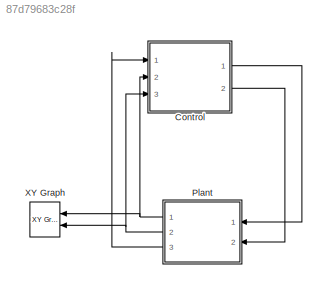
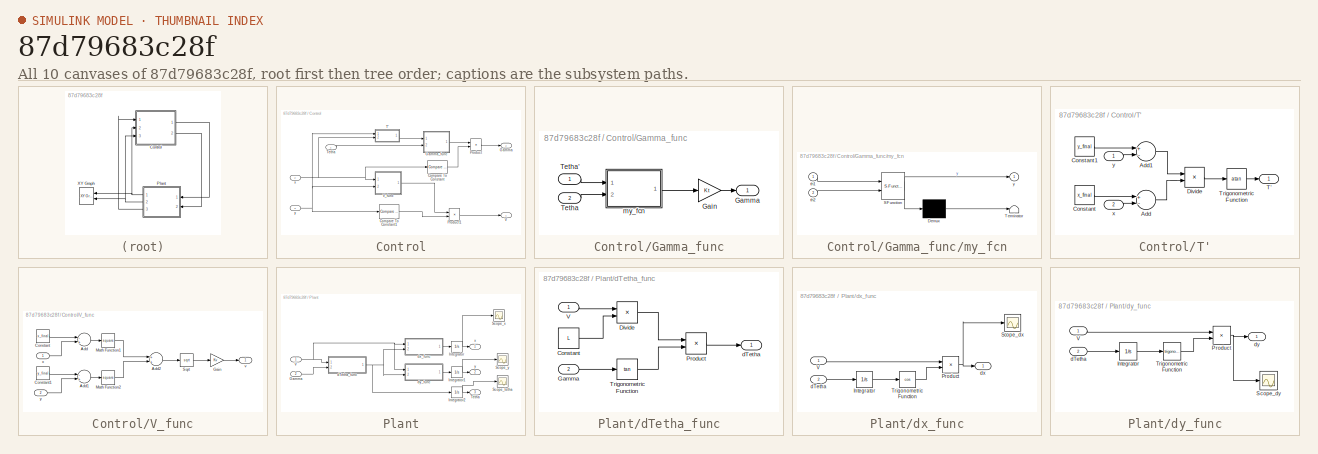
[diagram: thumbnail index - all 10 canvases of the model, root first then tree order]
MODEL slx_87d79683c28f
KIND model
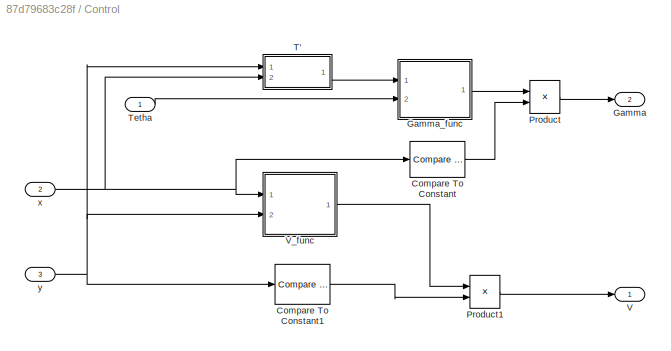
BLOCK [SubSystem] Control
  FunctionWithSeparateData = off
  MaskHideContents = off
  MinAlgLoopOccurrences = off
  Opaque = off
  Ports = [3, 2]
  PropExecContextOutsideSubsystem = off
  RTWSystemCode = Auto
  RequestExecContextInheritance = off
BLOCK [Reference] Control/Compare To Constant  REF=simulink/Logic and Bit
Operations/Compare
To Constant
  OutDataTypeStr = boolean
  Ports = [1, 1]
  SourceBlock = simulink/Logic and Bit\nOperations/Compare\nTo Constant
  SourceType = Compare To Constant
  ZeroCross = on
  const = x_final
  relop = <=
BLOCK [Reference] Control/Compare To Constant1  REF=simulink/Logic and Bit
Operations/Compare
To Constant
  OutDataTypeStr = boolean
  Ports = [1, 1]
  SourceBlock = simulink/Logic and Bit\nOperations/Compare\nTo Constant
  SourceType = Compare To Constant
  ZeroCross = on
  const = y_final
  relop = <=
BLOCK [Outport] Control/Gamma
  IconDisplay = Port number
  Port = 2
BLOCK [SubSystem] Control/Gamma_func
  FunctionWithSeparateData = off
  MaskHideContents = off
  MinAlgLoopOccurrences = off
  Opaque = off
  Ports = [2, 1]
  PropExecContextOutsideSubsystem = off
  RTWSystemCode = Auto
  RequestExecContextInheritance = off
BLOCK [Gain] Control/Gamma_func/Gain
  Gain = Kt
  OutDataTypeStr = Inherit: Inherit via internal rule
  ParamDataTypeStr = Inherit: Inherit via internal rule
  SaturateOnIntegerOverflow = off
BLOCK [Outport] Control/Gamma_func/Gamma
  IconDisplay = Port number
BLOCK [Inport] Control/Gamma_func/Tetha
  IconDisplay = Port number
  Port = 2
BLOCK [Inport] Control/Gamma_func/Tetha'
  IconDisplay = Port number
BLOCK [SubSystem] Control/Gamma_func/my_fcn
  ErrorFcn = Stateflow.Translate.translate
  FunctionWithSeparateData = off
  MaskHideContents = off
  MinAlgLoopOccurrences = off
  Opaque = off
  PermitHierarchicalResolution = ExplicitOnly
  Ports = [2, 1]
  PropExecContextOutsideSubsystem = off
  RTWSystemCode = Auto
  RequestExecContextInheritance = off
  SFBlockType = MATLAB Function
  TreatAsAtomicUnit = on
BLOCK [Demux] Control/Gamma_func/my_fcn/ Demux 
  Outputs = 1
  Ports = [1, 1]
BLOCK [S-Function] Control/Gamma_func/my_fcn/ SFunction 
  EnableBusSupport = on
  FunctionName = sf_sfun
  PortCounts = [2 2]
  Ports = [2, 2]
  Tag = Stateflow S-Function Model 2
BLOCK [Terminator] Control/Gamma_func/my_fcn/ Terminator 
BLOCK [Inport] Control/Gamma_func/my_fcn/th1
  IconDisplay = Port number
BLOCK [Inport] Control/Gamma_func/my_fcn/th2
  IconDisplay = Port number
  Port = 2
BLOCK [Outport] Control/Gamma_func/my_fcn/y
  IconDisplay = Port number
BLOCK [Product] Control/Product
  InputSameDT = off
  OutDataTypeStr = Inherit: Inherit via internal rule
  Ports = [2, 1]
  SaturateOnIntegerOverflow = off
BLOCK [Product] Control/Product1
  InputSameDT = off
  OutDataTypeStr = Inherit: Inherit via internal rule
  Ports = [2, 1]
  SaturateOnIntegerOverflow = off
BLOCK [SubSystem] Control/T'
  FunctionWithSeparateData = off
  MaskHideContents = off
  MinAlgLoopOccurrences = off
  Opaque = off
  Ports = [2, 1]
  PropExecContextOutsideSubsystem = off
  RTWSystemCode = Auto
  RequestExecContextInheritance = off
BLOCK [Sum] Control/T'/Add
  InputSameDT = off
  Inputs = +-
  OutDataTypeStr = Inherit: Inherit via internal rule
  Ports = [2, 1]
  SaturateOnIntegerOverflow = off
BLOCK [Sum] Control/T'/Add1
  InputSameDT = off
  Inputs = +-
  OutDataTypeStr = Inherit: Inherit via internal rule
  Ports = [2, 1]
  SaturateOnIntegerOverflow = off
BLOCK [Constant] Control/T'/Constant
  Value = x_final
BLOCK [Constant] Control/T'/Constant1
  Value = y_final
BLOCK [Product] Control/T'/Divide
  InputSameDT = off
  Inputs = */
  OutDataTypeStr = Inherit: Inherit via internal rule
  Ports = [2, 1]
  RndMeth = Floor
  SaturateOnIntegerOverflow = off
BLOCK [Outport] Control/T'/T'
  IconDisplay = Port number
BLOCK [Trigonometry] Control/T'/Trigonometric Function
  Operator = atan
  Ports = [1, 1]
BLOCK [Inport] Control/T'/x
  IconDisplay = Port number
  Port = 2
BLOCK [Inport] Control/T'/y
  IconDisplay = Port number
BLOCK [Inport] Control/Tetha
  IconDisplay = Port number
BLOCK [Outport] Control/V
  IconDisplay = Port number
BLOCK [SubSystem] Control/V_func
  FunctionWithSeparateData = off
  MaskHideContents = off
  MinAlgLoopOccurrences = off
  Opaque = off
  Ports = [2, 1]
  PropExecContextOutsideSubsystem = off
  RTWSystemCode = Auto
  RequestExecContextInheritance = off
BLOCK [Sum] Control/V_func/Add
  InputSameDT = off
  Inputs = -+
  OutDataTypeStr = Inherit: Inherit via internal rule
  Ports = [2, 1]
  SaturateOnIntegerOverflow = off
BLOCK [Sum] Control/V_func/Add1
  InputSameDT = off
  Inputs = -+
  OutDataTypeStr = Inherit: Inherit via internal rule
  Ports = [2, 1]
  SaturateOnIntegerOverflow = off
BLOCK [Sum] Control/V_func/Add2
  InputSameDT = off
  OutDataTypeStr = Inherit: Inherit via internal rule
  Ports = [2, 1]
  SaturateOnIntegerOverflow = off
BLOCK [Constant] Control/V_func/Constant
  Value = x_final
BLOCK [Constant] Control/V_func/Constant1
  Value = y_final
BLOCK [Gain] Control/V_func/Gain
  Gain = Kv
  OutDataTypeStr = Inherit: Inherit via internal rule
  ParamDataTypeStr = Inherit: Inherit via internal rule
  SaturateOnIntegerOverflow = off
BLOCK [Math] Control/V_func/Math Function1
  Operator = square
  Ports = [1, 1]
BLOCK [Math] Control/V_func/Math Function2
  Operator = square
  Ports = [1, 1]
BLOCK [Sqrt] Control/V_func/Sqrt
BLOCK [Outport] Control/V_func/v
  IconDisplay = Port number
BLOCK [Inport] Control/V_func/x
  IconDisplay = Port number
BLOCK [Inport] Control/V_func/y
  IconDisplay = Port number
  Port = 2
BLOCK [Inport] Control/x
  IconDisplay = Port number
  Port = 2
BLOCK [Inport] Control/y
  IconDisplay = Port number
  Port = 3
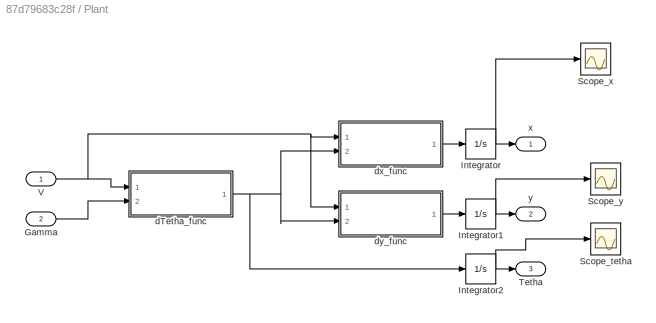
BLOCK [SubSystem] Plant
  FunctionWithSeparateData = off
  MaskHideContents = off
  MinAlgLoopOccurrences = off
  Opaque = off
  Ports = [2, 3]
  PropExecContextOutsideSubsystem = off
  RTWSystemCode = Auto
  RequestExecContextInheritance = off
BLOCK [Inport] Plant/Gamma
  IconDisplay = Port number
  Port = 2
BLOCK [Integrator] Plant/Integrator
  Ports = [1, 1]
BLOCK [Integrator] Plant/Integrator1
  Ports = [1, 1]
BLOCK [Integrator] Plant/Integrator2
  Ports = [1, 1]
BLOCK [Scope] Plant/Scope_tetha
  DataFormat = StructureWithTime
  Floating = off
  NumInputPorts = 1
  Ports = [1]
  SampleTime = 0
  SaveName = ScopeData4
  ShowLegends = off
  YMax = 22.5
  YMin = 0
BLOCK [Scope] Plant/Scope_x
  DataFormat = StructureWithTime
  Floating = off
  NumInputPorts = 1
  Ports = [1]
  SampleTime = 0
  SaveName = ScopeData2
  ShowLegends = off
  YMax = 400
  YMin = 0
BLOCK [Scope] Plant/Scope_y
  DataFormat = StructureWithTime
  Floating = off
  NumInputPorts = 1
  Ports = [1]
  SampleTime = 0
  SaveName = ScopeData3
  ShowLegends = off
  YMax = 250
  YMin = 0
BLOCK [Outport] Plant/Tetha
  IconDisplay = Port number
  Port = 3
BLOCK [Inport] Plant/V
  IconDisplay = Port number
BLOCK [SubSystem] Plant/dTetha_func
  FunctionWithSeparateData = off
  MaskHideContents = off
  MinAlgLoopOccurrences = off
  Opaque = off
  Ports = [2, 1]
  PropExecContextOutsideSubsystem = off
  RTWSystemCode = Auto
  RequestExecContextInheritance = off
BLOCK [Constant] Plant/dTetha_func/Constant
  Value = L
BLOCK [Product] Plant/dTetha_func/Divide
  InputSameDT = off
  Inputs = */
  OutDataTypeStr = Inherit: Inherit via internal rule
  Ports = [2, 1]
  RndMeth = Floor
  SaturateOnIntegerOverflow = off
BLOCK [Inport] Plant/dTetha_func/Gamma
  IconDisplay = Port number
  Port = 2
BLOCK [Product] Plant/dTetha_func/Product
  InputSameDT = off
  OutDataTypeStr = Inherit: Inherit via internal rule
  Ports = [2, 1]
  SaturateOnIntegerOverflow = off
BLOCK [Trigonometry] Plant/dTetha_func/Trigonometric Function
  Operator = tan
  Ports = [1, 1]
BLOCK [Inport] Plant/dTetha_func/V
  IconDisplay = Port number
BLOCK [Outport] Plant/dTetha_func/dTetha
  IconDisplay = Port number
BLOCK [SubSystem] Plant/dx_func
  FunctionWithSeparateData = off
  MaskHideContents = off
  MinAlgLoopOccurrences = off
  Opaque = off
  Ports = [2, 1]
  PropExecContextOutsideSubsystem = off
  RTWSystemCode = Auto
  RequestExecContextInheritance = off
BLOCK [Integrator] Plant/dx_func/Integrator
  Ports = [1, 1]
BLOCK [Product] Plant/dx_func/Product
  InputSameDT = off
  OutDataTypeStr = Inherit: Inherit via internal rule
  Ports = [2, 1]
  SaturateOnIntegerOverflow = off
BLOCK [Scope] Plant/dx_func/Scope_dx
  DataFormat = StructureWithTime
  Floating = off
  NumInputPorts = 1
  Ports = [1]
  SampleTime = 0
  ShowLegends = off
  YMax = 400
  YMin = -150
  ZoomMode = xonly
BLOCK [Trigonometry] Plant/dx_func/Trigonometric Function
  Operator = cos
  Ports = [1, 1]
BLOCK [Inport] Plant/dx_func/V
  IconDisplay = Port number
BLOCK [Inport] Plant/dx_func/dTetha
  IconDisplay = Port number
  Port = 2
BLOCK [Outport] Plant/dx_func/dx
  IconDisplay = Port number
BLOCK [SubSystem] Plant/dy_func
  FunctionWithSeparateData = off
  MaskHideContents = off
  MinAlgLoopOccurrences = off
  Opaque = off
  Ports = [2, 1]
  PropExecContextOutsideSubsystem = off
  RTWSystemCode = Auto
  RequestExecContextInheritance = off
BLOCK [Integrator] Plant/dy_func/Integrator
  Ports = [1, 1]
BLOCK [Product] Plant/dy_func/Product
  InputSameDT = off
  OutDataTypeStr = Inherit: Inherit via internal rule
  Ports = [2, 1]
  SaturateOnIntegerOverflow = off
BLOCK [Scope] Plant/dy_func/Scope_dy
  DataFormat = StructureWithTime
  Floating = off
  NumInputPorts = 1
  Ports = [1]
  SampleTime = 0
  SaveName = ScopeData1
  ShowLegends = off
  YMax = 1750
  YMin = -250
BLOCK [Trigonometry] Plant/dy_func/Trigonometric Function
  Ports = [1, 1]
BLOCK [Inport] Plant/dy_func/V
  IconDisplay = Port number
BLOCK [Inport] Plant/dy_func/dTetha
  IconDisplay = Port number
  Port = 2
BLOCK [Outport] Plant/dy_func/dy
  IconDisplay = Port number
BLOCK [Outport] Plant/x
  IconDisplay = Port number
BLOCK [Outport] Plant/y
  IconDisplay = Port number
  Port = 2
BLOCK [Reference] XY Graph  REF=simulink/Sinks/XY Graph
  Ports = [2]
  SourceBlock = simulink/Sinks/XY Graph
  SourceType = XY scope.
  st = -1
  xmax = 500
  xmin = 0
  ymax = 500
  ymin = 0
LINE Control/Compare To Constant1:1 -> Control/Product1:2
LINE Control/Compare To Constant:1 -> Control/Product:2
LINE Control/Gamma_func/Gain:1 -> Control/Gamma_func/Gamma:1
LINE Control/Gamma_func/Tetha':1 -> Control/Gamma_func/my_fcn:1
LINE Control/Gamma_func/Tetha:1 -> Control/Gamma_func/my_fcn:2
LINE Control/Gamma_func/my_fcn:1 -> Control/Gamma_func/Gain:1
LINE Control/Gamma_func:1 -> Control/Product:1
LINE Control/Product1:1 -> Control/V:1
LINE Control/Product:1 -> Control/Gamma:1
LINE Control/T'/Add1:1 -> Control/T'/Divide:1
LINE Control/T'/Add:1 -> Control/T'/Divide:2
LINE Control/T'/Constant1:1 -> Control/T'/Add1:1
LINE Control/T'/Constant:1 -> Control/T'/Add:1
LINE Control/T'/Divide:1 -> Control/T'/Trigonometric Function:1
LINE Control/T'/Trigonometric Function:1 -> Control/T'/T':1
LINE Control/T'/x:1 -> Control/T'/Add:2
LINE Control/T'/y:1 -> Control/T'/Add1:2
LINE Control/T':1 -> Control/Gamma_func:1
LINE Control/Tetha:1 -> Control/Gamma_func:2
LINE Control/V_func/Add1:1 -> Control/V_func/Math Function2:1
LINE Control/V_func/Add2:1 -> Control/V_func/Sqrt:1
LINE Control/V_func/Add:1 -> Control/V_func/Math Function1:1
LINE Control/V_func/Constant1:1 -> Control/V_func/Add1:1
LINE Control/V_func/Constant:1 -> Control/V_func/Add:1
LINE Control/V_func/Gain:1 -> Control/V_func/v:1
LINE Control/V_func/Math Function1:1 -> Control/V_func/Add2:1
LINE Control/V_func/Math Function2:1 -> Control/V_func/Add2:2
LINE Control/V_func/Sqrt:1 -> Control/V_func/Gain:1
LINE Control/V_func/x:1 -> Control/V_func/Add:2
LINE Control/V_func/y:1 -> Control/V_func/Add1:2
LINE Control/V_func:1 -> Control/Product1:1
NET Control/x:1 -> Control/Compare To Constant:1, Control/T':2, Control/V_func:1
NET Control/y:1 -> Control/Compare To Constant1:1, Control/T':1, Control/V_func:2
LINE Control:1 -> Plant:1
LINE Control:2 -> Plant:2
LINE Plant/Gamma:1 -> Plant/dTetha_func:2
NET Plant/Integrator1:1 -> Plant/Scope_y:1, Plant/y:1
NET Plant/Integrator2:1 -> Plant/Scope_tetha:1, Plant/Tetha:1
NET Plant/Integrator:1 -> Plant/Scope_x:1, Plant/x:1
NET Plant/V:1 -> Plant/dTetha_func:1, Plant/dx_func:1, Plant/dy_func:1
LINE Plant/dTetha_func/Constant:1 -> Plant/dTetha_func/Divide:2
LINE Plant/dTetha_func/Divide:1 -> Plant/dTetha_func/Product:1
LINE Plant/dTetha_func/Gamma:1 -> Plant/dTetha_func/Trigonometric Function:1
LINE Plant/dTetha_func/Product:1 -> Plant/dTetha_func/dTetha:1
LINE Plant/dTetha_func/Trigonometric Function:1 -> Plant/dTetha_func/Product:2
LINE Plant/dTetha_func/V:1 -> Plant/dTetha_func/Divide:1
NET Plant/dTetha_func:1 -> Plant/Integrator2:1, Plant/dx_func:2, Plant/dy_func:2
LINE Plant/dx_func/Integrator:1 -> Plant/dx_func/Trigonometric Function:1
NET Plant/dx_func/Product:1 -> Plant/dx_func/Scope_dx:1, Plant/dx_func/dx:1
LINE Plant/dx_func/Trigonometric Function:1 -> Plant/dx_func/Product:2
LINE Plant/dx_func/V:1 -> Plant/dx_func/Product:1
LINE Plant/dx_func/dTetha:1 -> Plant/dx_func/Integrator:1
LINE Plant/dx_func:1 -> Plant/Integrator:1
LINE Plant/dy_func/Integrator:1 -> Plant/dy_func/Trigonometric Function:1
NET Plant/dy_func/Product:1 -> Plant/dy_func/Scope_dy:1, Plant/dy_func/dy:1
LINE Plant/dy_func/Trigonometric Function:1 -> Plant/dy_func/Product:2
LINE Plant/dy_func/V:1 -> Plant/dy_func/Product:1
LINE Plant/dy_func/dTetha:1 -> Plant/dy_func/Integrator:1
LINE Plant/dy_func:1 -> Plant/Integrator1:1
NET Plant:1 -> Control:2, XY Graph:1
NET Plant:2 -> Control:3, XY Graph:2
LINE Plant:3 -> Control:1
note: NET lines group one-source signal fan-out (src -> all destinations, sorted); 1:1 wires keep LINE
